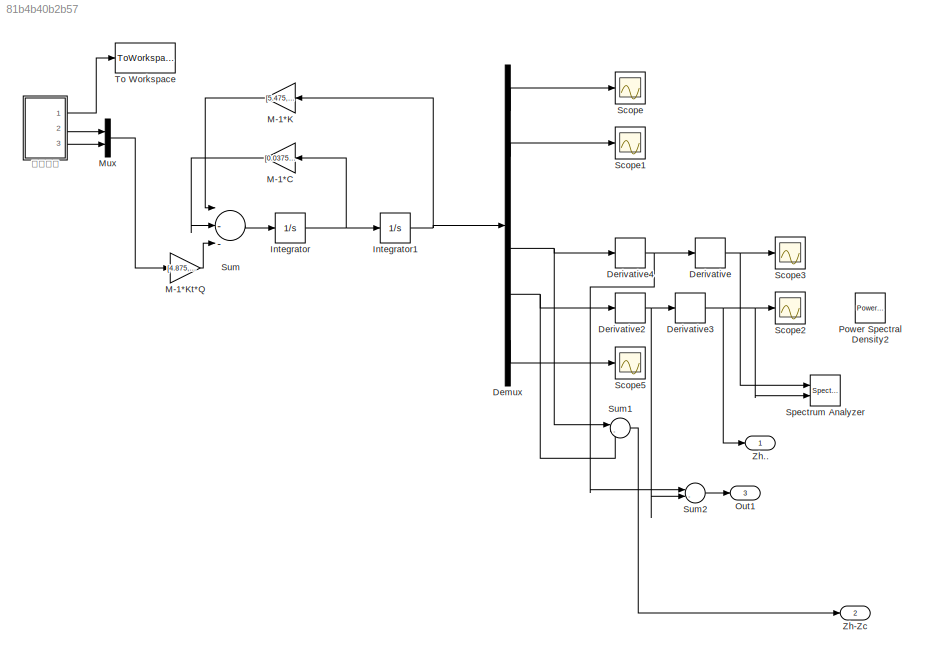
MODEL slx_81b4b40b2b57
KIND model
BLOCK [Demux] Demux
  DisplayOption = bar
  Outputs = 6
  Ports = [1, 6]
BLOCK [Derivative] Derivative
BLOCK [Derivative] Derivative2
BLOCK [Derivative] Derivative3
BLOCK [Derivative] Derivative4
BLOCK [Integrator] Integrator
  Ports = [1, 1]
BLOCK [Integrator] Integrator1
  Ports = [1, 1]
BLOCK [Gain] M-1*C
  Gain = [0.0375,0,-0.0375,0,0,0.0506;0,0.033,-0.033,0,0,-0.0379;-0.0022,-0.0022,0.0046,-0.0002,0,-0.0003;0,0,-0.0021,0.0043,-0.0021,-0.0012;0,0,0,-0.0135,0.0135,0;0.0017,-0.0014,-0.0002,-0.0001,0,0.0039]
  Multiplication = Matrix(K*u)
  OutDataTypeStr = Inherit: Inherit via internal rule
  ParamDataTypeStr = Inherit: Inherit via internal rule
  SaturateOnIntegerOverflow = off
BLOCK [Gain] M-1*K
  Gain = [5.475,0,-0.6,0,0,0.81;0,4.8132,-0.5275,0,0,-0.6066;-0.0348,-0.0348,0.0812,0.0116,0,-0.0006;0,0,0.1143,0.1714,-0.0571,-0.0629;0,0,0,-0.3604,0.3604,0;0.0265,-0.0226,-0.0003,-0.0036,0,0.0637]
  Multiplication = Matrix(K*u)
  OutDataTypeStr = Inherit: Inherit via internal rule
  ParamDataTypeStr = Inherit: Inherit via internal rule
  SaturateOnIntegerOverflow = off
BLOCK [Gain] M-1*Kt*Q
  Gain = [4.875,0;0,4.2875;0,0;0,0;0,0;0,0;]
  Multiplication = Matrix(K*u)
  OutDataTypeStr = Inherit: Inherit via internal rule
  ParamDataTypeStr = Inherit: Inherit via internal rule
  SaturateOnIntegerOverflow = off
BLOCK [Mux] Mux
  DisplayOption = bar
  Inputs = 2
  Ports = [2, 1]
BLOCK [Outport] Out1
  IconDisplay = Port number
  Port = 3
BLOCK [Reference] Power Spectral Density2  REF=simulink_extras/Additional
Sinks/Power Spectral
Density
  HowOften = 64
  Ports = [1]
  SourceBlock = simulink_extras/Additional\nSinks/Power Spectral\nDensity
  SourceType = Power Spectral Density
  fftpts = 512
  npts = 128
  sampleT = 0.1
BLOCK [Scope] Scope
  DataFormat = StructureWithTime
  Floating = off
  NumInputPorts = 1
  Ports = [1]
  SampleTime = 0
  ShowLegends = off
BLOCK [Scope] Scope1
  DataFormat = StructureWithTime
  Floating = off
  NumInputPorts = 1
  Ports = [1]
  SampleTime = 0
  SaveName = ScopeData1
  ShowLegends = off
BLOCK [Scope] Scope2
  Floating = off
  NumInputPorts = 1
  Ports = [1]
  SaveName = ScopeData2
  ShowLegends = off
BLOCK [Scope] Scope3
  Floating = off
  NumInputPorts = 1
  Ports = [1]
  SaveName = ScopeData3
  ShowLegends = off
BLOCK [Scope] Scope5
  DataFormat = StructureWithTime
  Floating = off
  NumInputPorts = 1
  Ports = [1]
  SampleTime = 0
  SaveName = ScopeData5
  ShowLegends = off
BLOCK [Reference] Spectrum Analyzer  REF=simulink_extras/Additional
Sinks/Spectrum
Analyzer
  HowOften = 64
  Ports = [2]
  SourceBlock = simulink_extras/Additional\nSinks/Spectrum\nAnalyzer
  SourceType = Spectrum Analyzer
  fftpts = 256
  npts = 256
  sampleT = 0.1
BLOCK [Sum] Sum
  InputSameDT = off
  Inputs = |--+
  OutDataTypeStr = Inherit: Inherit via internal rule
  Ports = [3, 1]
  SaturateOnIntegerOverflow = off
BLOCK [Sum] Sum1
  IconShape = round
  InputSameDT = off
  Inputs = |-+
  OutDataTypeStr = Inherit: Inherit via internal rule
  Ports = [2, 1]
  SaturateOnIntegerOverflow = off
BLOCK [Sum] Sum2
  IconShape = round
  InputSameDT = off
  Inputs = |-+
  OutDataTypeStr = Inherit: Inherit via internal rule
  Ports = [2, 1]
  SaturateOnIntegerOverflow = off
BLOCK [ToWorkspace] To Workspace
  FixptAsFi = on
  MaxDataPoints = inf
  Ports = [1]
  SampleTime = -1
  Save2DSignal = 3-D array (concatenate along third dimension)
  SaveFormat = Structure With Time
  VariableName = simout
BLOCK [Outport] Zh-Zc
  IconDisplay = Port number
  Port = 2
BLOCK [Outport] Zh..
  IconDisplay = Port number
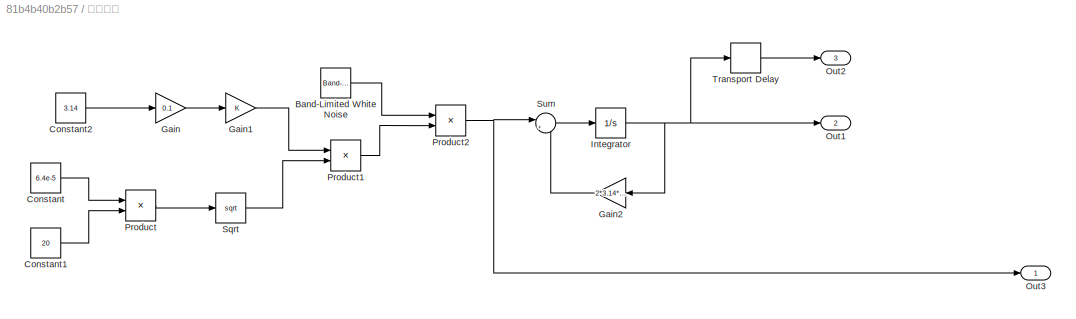
BLOCK [SubSystem] 路面激励 
  Ports = [0, 3]
  RequestExecContextInheritance = off
BLOCK [Reference] 路面激励 /Band-Limited White Noise  REF=simulink/Sources/Band-Limited
White Noise
  Cov = [0.1]
  Ports = [0, 1]
  SourceBlock = simulink/Sources/Band-Limited\nWhite Noise
  SourceType = Band-Limited White Noise.
  Ts = 0.1
  VectorParams1D = on
  seed = [23341]
BLOCK [Constant] 路面激励 /Constant
  Value = 6.4e-5
BLOCK [Constant] 路面激励 /Constant1
  Value = 20
BLOCK [Constant] 路面激励 /Constant2
  Value = 3.14
BLOCK [Gain] 路面激励 /Gain
  Gain = 0.1
  OutDataTypeStr = Inherit: Inherit via internal rule
  ParamDataTypeStr = Inherit: Inherit via internal rule
  SaturateOnIntegerOverflow = off
BLOCK [Gain] 路面激励 /Gain1
  OutDataTypeStr = Inherit: Inherit via internal rule
  ParamDataTypeStr = Inherit: Inherit via internal rule
  SaturateOnIntegerOverflow = off
BLOCK [Gain] 路面激励 /Gain2
  Gain = 2*3.14*0.1*20
  OutDataTypeStr = Inherit: Inherit via internal rule
  ParamDataTypeStr = Inherit: Inherit via internal rule
  SaturateOnIntegerOverflow = off
BLOCK [Integrator] 路面激励 /Integrator
  Ports = [1, 1]
BLOCK [Outport] 路面激励 /Out1
  IconDisplay = Port number
  Port = 2
BLOCK [Outport] 路面激励 /Out2
  IconDisplay = Port number
  Port = 3
BLOCK [Outport] 路面激励 /Out3
  IconDisplay = Port number
BLOCK [Product] 路面激励 /Product
  InputSameDT = off
  OutDataTypeStr = Inherit: Inherit via internal rule
  Ports = [2, 1]
  RndMeth = Floor
  SaturateOnIntegerOverflow = off
BLOCK [Product] 路面激励 /Product1
  InputSameDT = off
  OutDataTypeStr = Inherit: Inherit via internal rule
  Ports = [2, 1]
  RndMeth = Floor
  SaturateOnIntegerOverflow = off
BLOCK [Product] 路面激励 /Product2
  InputSameDT = off
  OutDataTypeStr = Inherit: Inherit via internal rule
  Ports = [2, 1]
  RndMeth = Floor
  SaturateOnIntegerOverflow = off
BLOCK [Sqrt] 路面激励 /Sqrt
BLOCK [Sum] 路面激励 /Sum
  IconShape = round
  InputSameDT = off
  Inputs = |+-
  OutDataTypeStr = Inherit: Inherit via internal rule
  Ports = [2, 1]
  SaturateOnIntegerOverflow = off
BLOCK [TransportDelay] 路面激励 /Transport Delay
  Ports = [1, 1]
LINE Demux:1 -> Scope:1
LINE Demux:2 -> Scope1:1
NET Demux:4 -> Derivative4:1, Sum1:1
NET Demux:5 -> Derivative2:1, Sum1:2
LINE Demux:6 -> Scope5:1
NET Derivative2:1 -> Derivative3:1, Sum2:2
NET Derivative3:1 -> Scope2:1, Spectrum Analyzer:2, Zh..:1
NET Derivative4:1 -> Derivative:1, Sum2:1
NET Derivative:1 -> Scope3:1, Spectrum Analyzer:1
NET Integrator1:1 -> Demux:1, M-1*K:1
NET Integrator:1 -> Integrator1:1, M-1*C:1
LINE M-1*C:1 -> Sum:2
LINE M-1*K:1 -> Sum:1
LINE M-1*Kt*Q:1 -> Sum:3
LINE Mux:1 -> M-1*Kt*Q:1
LINE Sum1:1 -> Zh-Zc:1
LINE Sum2:1 -> Out1:1
LINE Sum:1 -> Integrator:1
LINE 路面激励 /Band-Limited White Noise:1 -> 路面激励 /Product2:1
LINE 路面激励 /Constant1:1 -> 路面激励 /Product:2
LINE 路面激励 /Constant2:1 -> 路面激励 /Gain:1
LINE 路面激励 /Constant:1 -> 路面激励 /Product:1
LINE 路面激励 /Gain1:1 -> 路面激励 /Product1:1
LINE 路面激励 /Gain2:1 -> 路面激励 /Sum:2
LINE 路面激励 /Gain:1 -> 路面激励 /Gain1:1
NET 路面激励 /Integrator:1 -> 路面激励 /Gain2:1, 路面激励 /Out1:1, 路面激励 /Transport Delay:1
LINE 路面激励 /Product1:1 -> 路面激励 /Product2:2
NET 路面激励 /Product2:1 -> 路面激励 /Out3:1, 路面激励 /Sum:1
LINE 路面激励 /Product:1 -> 路面激励 /Sqrt:1
LINE 路面激励 /Sqrt:1 -> 路面激励 /Product1:2
LINE 路面激励 /Sum:1 -> 路面激励 /Integrator:1
LINE 路面激励 /Transport Delay:1 -> 路面激励 /Out2:1
LINE 路面激励 :1 -> To Workspace:1
LINE 路面激励 :2 -> Mux:1
LINE 路面激励 :3 -> Mux:2
note: NET lines group one-source signal fan-out (src -> all destinations, sorted); 1:1 wires keep LINE
